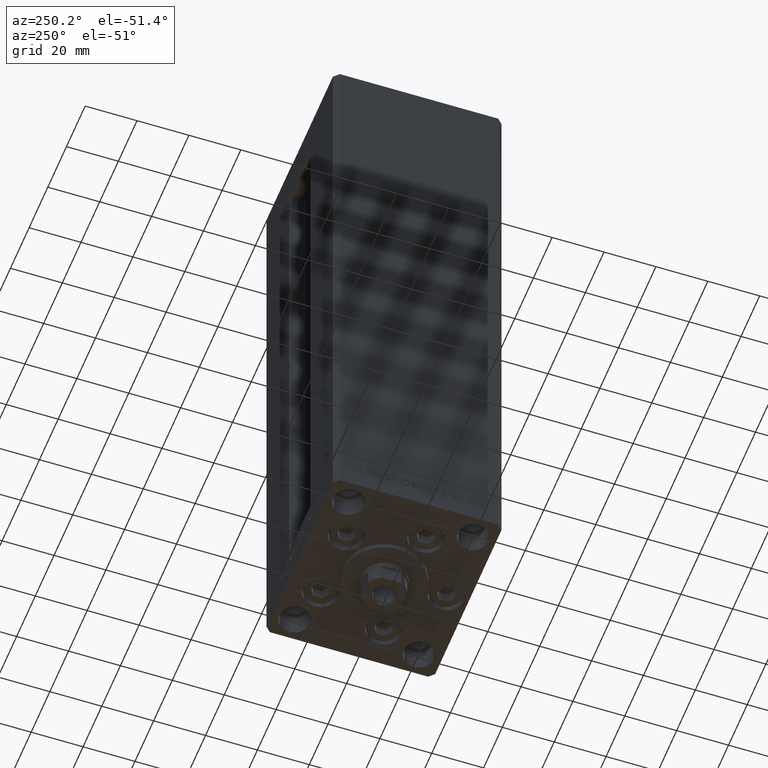
[diagram: clean part render]
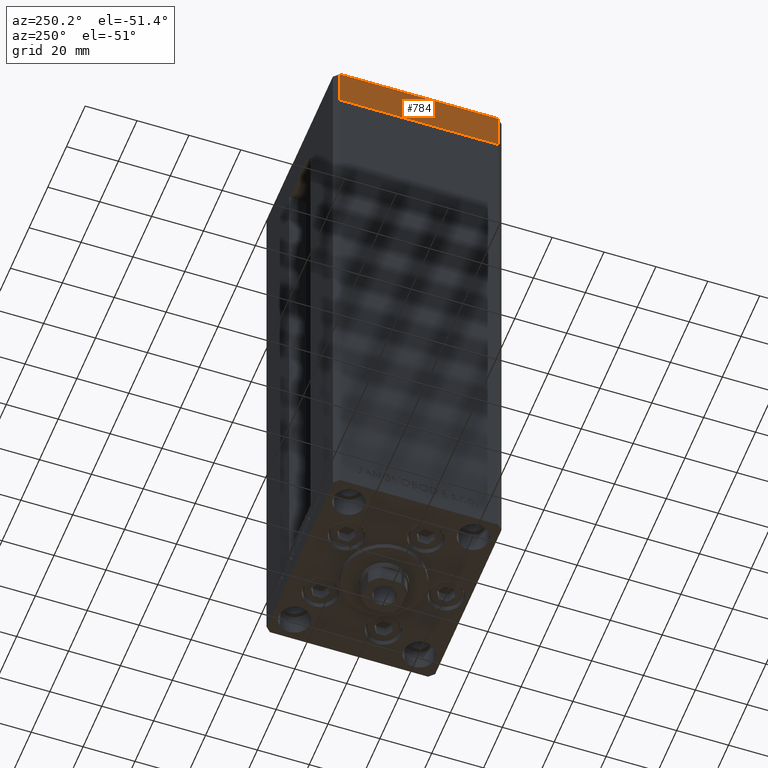
[diagram: same view with one face highlighted and labeled with its STEP entity id]
A machine part, auxiliary view. The second image highlights one B-rep face of the part: STEP entity #784.
In plain terms, the highlighted planar face has unit normal (-1, -0, 0).
Its self-contained STEP definition (entity closure, byte-faithful):
#784 = ADVANCED_FACE ( 'NONE', ( #48323 ), #32986, .T. ) ;
#3626 = EDGE_LOOP ( 'NONE', ( #21814, #32410, #14821, #13675 ) ) ;
#3878 = VERTEX_POINT ( 'NONE', #35546 ) ;
#4746 = VECTOR ( 'NONE', #36981, 1000.000000000000000 ) ;
#8273 = VERTEX_POINT ( 'NONE', #16492 ) ;
#8804 = VECTOR ( 'NONE', #45942, 1000.000000000000000 ) ;
#9604 = VERTEX_POINT ( 'NONE', #34887 ) ;
#13675 = ORIENTED_EDGE ( 'NONE', *, *, #14995, .T. ) ;
#13702 = DIRECTION ( 'NONE',  ( -1.000000000000000000, -4.550094363217855288E-16, 0.000000000000000000 ) ) ;
#14425 = EDGE_CURVE ( 'NONE', #9604, #3878, #27496, .T. ) ;
#14821 = ORIENTED_EDGE ( 'NONE', *, *, #25754, .T. ) ;
#14995 = EDGE_CURVE ( 'NONE', #8273, #3878, #41990, .T. ) ;
#15761 = CARTESIAN_POINT ( 'NONE',  ( -37.49999999999998579, -30.50000000000001421, -15.00000000000000000 ) ) ;
#16492 = CARTESIAN_POINT ( 'NONE',  ( -37.49999999999998579, -30.50000000000001421, -15.00000000000000000 ) ) ;
#21814 = ORIENTED_EDGE ( 'NONE', *, *, #14425, .F. ) ;
#22117 = LINE ( 'NONE', #48837, #4746 ) ;
#22514 = LINE ( 'NONE', #29458, #43759 ) ;
#25320 = DIRECTION ( 'NONE',  ( 4.550094363217855288E-16, -1.000000000000000000, 0.000000000000000000 ) ) ;
#25754 = EDGE_CURVE ( 'NONE', #30506, #8273, #22514, .T. ) ;
#27443 = AXIS2_PLACEMENT_3D ( 'NONE', #43642, #13702, #25320 ) ;
#27496 = LINE ( 'NONE', #38892, #38804 ) ;
#27971 = DIRECTION ( 'NONE',  ( 4.550094363217855288E-16, -1.000000000000000000, 0.000000000000000000 ) ) ;
#29458 = CARTESIAN_POINT ( 'NONE',  ( -37.50000000000001421, 30.49999999999998579, -15.00000000000000000 ) ) ;
#30506 = VERTEX_POINT ( 'NONE', #47163 ) ;
#32410 = ORIENTED_EDGE ( 'NONE', *, *, #47309, .F. ) ;
#32986 = PLANE ( 'NONE',  #27443 ) ;
#33413 = DIRECTION ( 'NONE',  ( 4.550094363217855288E-16, -1.000000000000000000, 0.000000000000000000 ) ) ;
#34887 = CARTESIAN_POINT ( 'NONE',  ( -37.50000000000001421, 30.49999999999998579, 0.000000000000000000 ) ) ;
#35546 = CARTESIAN_POINT ( 'NONE',  ( -37.49999999999998579, -30.50000000000001421, 0.000000000000000000 ) ) ;
#36981 = DIRECTION ( 'NONE',  ( 0.000000000000000000, 0.000000000000000000, 1.000000000000000000 ) ) ;
#38804 = VECTOR ( 'NONE', #27971, 1000.000000000000000 ) ;
#38892 = CARTESIAN_POINT ( 'NONE',  ( -37.50000000000001421, 30.49999999999998579, 0.000000000000000000 ) ) ;
#41990 = LINE ( 'NONE', #15761, #8804 ) ;
#43642 = CARTESIAN_POINT ( 'NONE',  ( -37.50000000000001421, 30.49999999999998579, -15.00000000000000000 ) ) ;
#43759 = VECTOR ( 'NONE', #33413, 1000.000000000000000 ) ;
#45942 = DIRECTION ( 'NONE',  ( 0.000000000000000000, 0.000000000000000000, 1.000000000000000000 ) ) ;
#47163 = CARTESIAN_POINT ( 'NONE',  ( -37.50000000000001421, 30.49999999999998579, -15.00000000000000000 ) ) ;
#47309 = EDGE_CURVE ( 'NONE', #30506, #9604, #22117, .T. ) ;
#48323 = FACE_OUTER_BOUND ( 'NONE', #3626, .T. ) ;
#48837 = CARTESIAN_POINT ( 'NONE',  ( -37.50000000000001421, 30.49999999999998579, -15.00000000000000000 ) ) ;